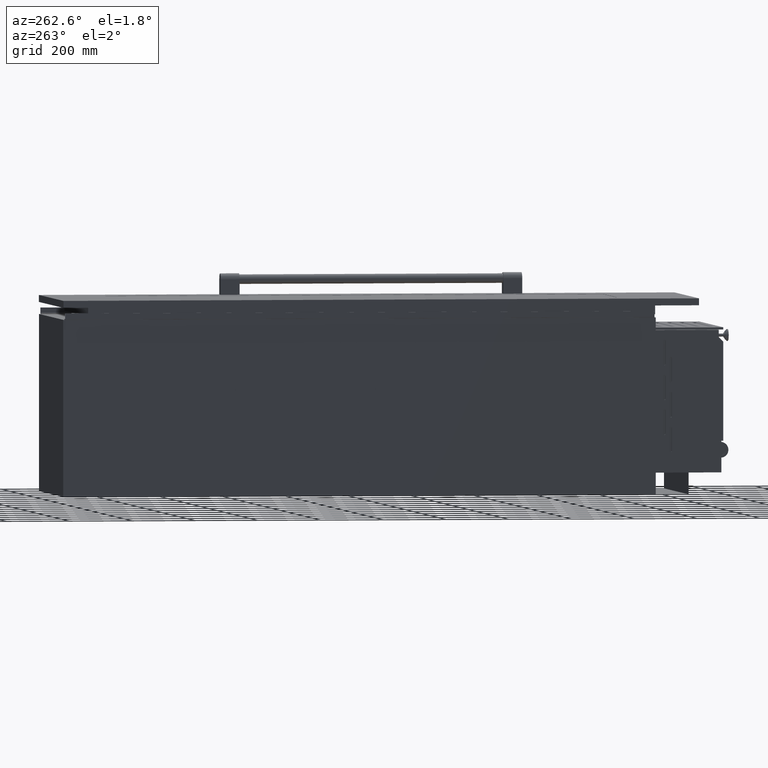
[diagram: clean part render]
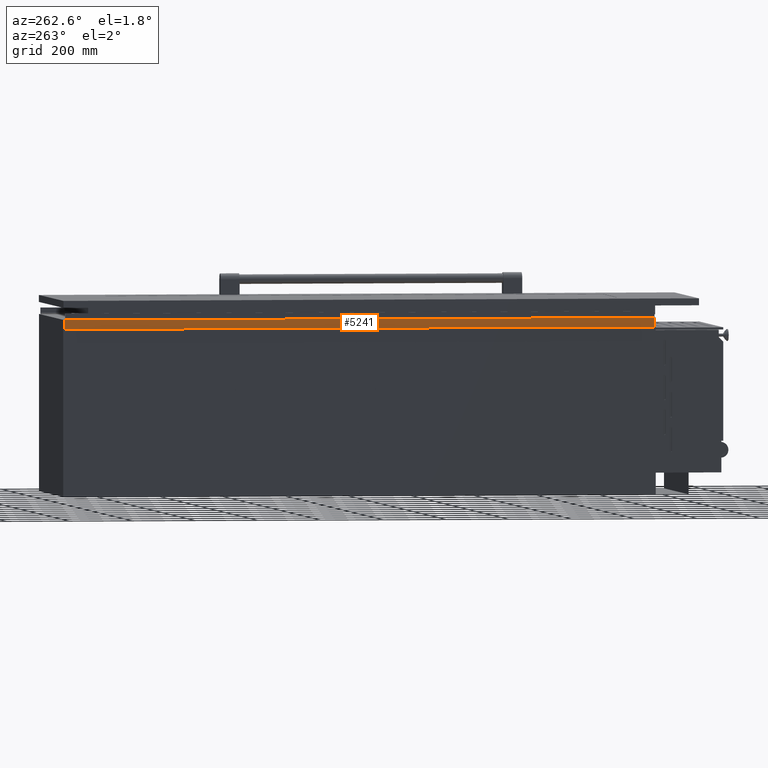
[diagram: same view with one face highlighted and labeled with its STEP entity id]
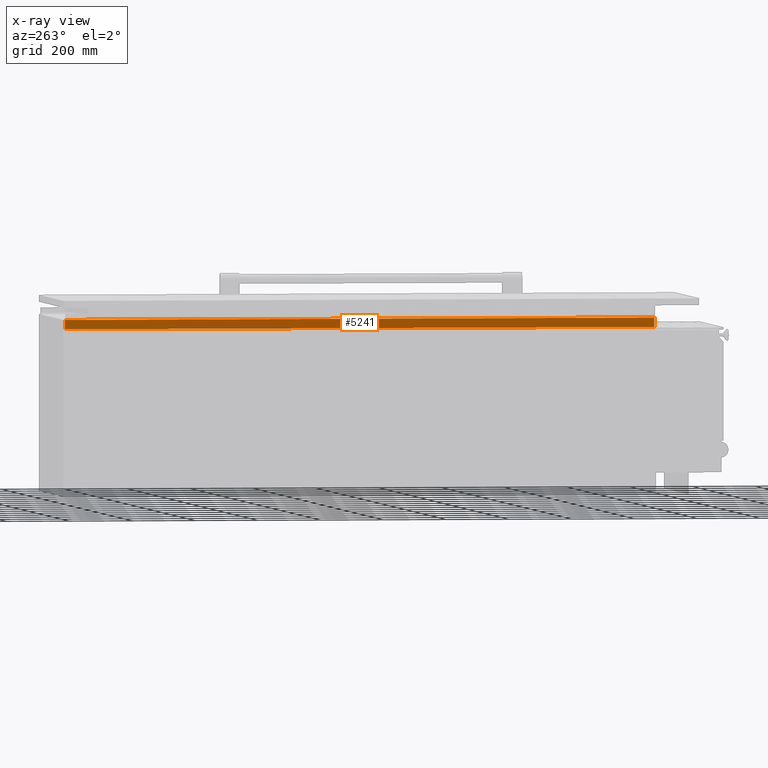
[diagram: x-ray of the same camera — body ghosted, the highlighted face saturated]
A machine part, auxiliary view. The second image highlights one B-rep face of the part: STEP entity #5241.
The next image is the same camera in x-ray: the body ghosted, the highlighted face saturated — about 0% of this face is hidden behind the body in this view.
In plain terms, the highlighted planar face has unit normal (1, 0, -0).
Its self-contained STEP definition (entity closure, byte-faithful):
#205 = ORIENTED_EDGE ( 'NONE', *, *, #3059, .F. ) ;
#573 = CARTESIAN_POINT ( 'NONE',  ( 296.0000001499994900, -831.1499999999995200, 279.5000000500002700 ) ) ;
#1216 = CARTESIAN_POINT ( 'NONE',  ( 296.0000001499994900, -831.1499999999995200, 279.5000000500004400 ) ) ;
#1256 = DIRECTION ( 'NONE',  ( 0.0000000000000000000, 2.775557561562891700E-015, -1.000000000000000000 ) ) ;
#1517 = FACE_OUTER_BOUND ( 'NONE', #5882, .T. ) ;
#2022 = LINE ( 'NONE', #7578, #7342 ) ;
#2068 = DIRECTION ( 'NONE',  ( 0.0000000000000000000, -1.000000000000000000, -0.0000000000000000000 ) ) ;
#2668 = VERTEX_POINT ( 'NONE', #7593 ) ;
#2827 = VERTEX_POINT ( 'NONE', #573 ) ;
#3001 = VECTOR ( 'NONE', #2068, 1000.000000000000000 ) ;
#3059 = EDGE_CURVE ( 'NONE', #2827, #9260, #6338, .T. ) ;
#3505 = CARTESIAN_POINT ( 'NONE',  ( 296.0000001499994900, 1045.850000000000100, 279.5000000500002700 ) ) ;
#3508 = LINE ( 'NONE', #4458, #3001 ) ;
#3554 = CARTESIAN_POINT ( 'NONE',  ( 296.0000001499994900, 1100.901327281561600, 279.5000000500002700 ) ) ;
#3695 = VERTEX_POINT ( 'NONE', #8924 ) ;
#4036 = AXIS2_PLACEMENT_3D ( 'NONE', #3554, #4265, #9888 ) ;
#4265 = DIRECTION ( 'NONE',  ( 1.000000000000000000, 0.0000000000000000000, -0.0000000000000000000 ) ) ;
#4266 = ORIENTED_EDGE ( 'NONE', *, *, #8590, .F. ) ;
#4334 = PLANE ( 'NONE',  #4036 ) ;
#4370 = LINE ( 'NONE', #3505, #6975 ) ;
#4401 = DIRECTION ( 'NONE',  ( 0.0000000000000000000, 0.0000000000000000000, -1.000000000000000000 ) ) ;
#4458 = CARTESIAN_POINT ( 'NONE',  ( 296.0000001499994900, 1100.901327281561600, 250.0000030000001900 ) ) ;
#5241 = ADVANCED_FACE ( 'NONE', ( #1517 ), #4334, .F. ) ;
#5882 = EDGE_LOOP ( 'NONE', ( #8519, #6549, #205, #4266 ) ) ;
#6338 = LINE ( 'NONE', #1216, #9144 ) ;
#6549 = ORIENTED_EDGE ( 'NONE', *, *, #8560, .T. ) ;
#6743 = EDGE_CURVE ( 'NONE', #3695, #2668, #4370, .T. ) ;
#6975 = VECTOR ( 'NONE', #4401, 1000.000000000000000 ) ;
#7342 = VECTOR ( 'NONE', #8362, 1000.000000000000000 ) ;
#7578 = CARTESIAN_POINT ( 'NONE',  ( 296.0000001499994900, 1100.901327281561600, 279.5000000500002700 ) ) ;
#7593 = CARTESIAN_POINT ( 'NONE',  ( 296.0000001499994900, 1045.850000000000100, 250.0000030000001900 ) ) ;
#8362 = DIRECTION ( 'NONE',  ( 0.0000000000000000000, -1.000000000000000000, -0.0000000000000000000 ) ) ;
#8519 = ORIENTED_EDGE ( 'NONE', *, *, #6743, .T. ) ;
#8560 = EDGE_CURVE ( 'NONE', #2668, #9260, #3508, .T. ) ;
#8590 = EDGE_CURVE ( 'NONE', #3695, #2827, #2022, .T. ) ;
#8924 = CARTESIAN_POINT ( 'NONE',  ( 296.0000001499994900, 1045.850000000000100, 279.5000000500002700 ) ) ;
#9045 = CARTESIAN_POINT ( 'NONE',  ( 296.0000001499994900, -831.1499999999994100, 250.0000030000001900 ) ) ;
#9144 = VECTOR ( 'NONE', #1256, 1000.000000000000000 ) ;
#9260 = VERTEX_POINT ( 'NONE', #9045 ) ;
#9888 = DIRECTION ( 'NONE',  ( 0.0000000000000000000, 0.0000000000000000000, 1.000000000000000000 ) ) ;